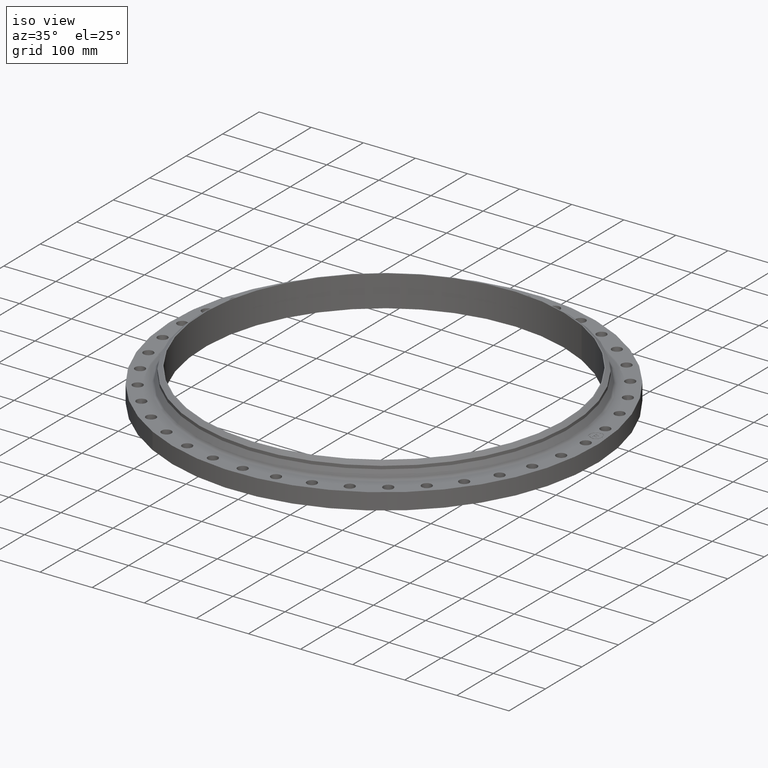
[diagram: clean part render]
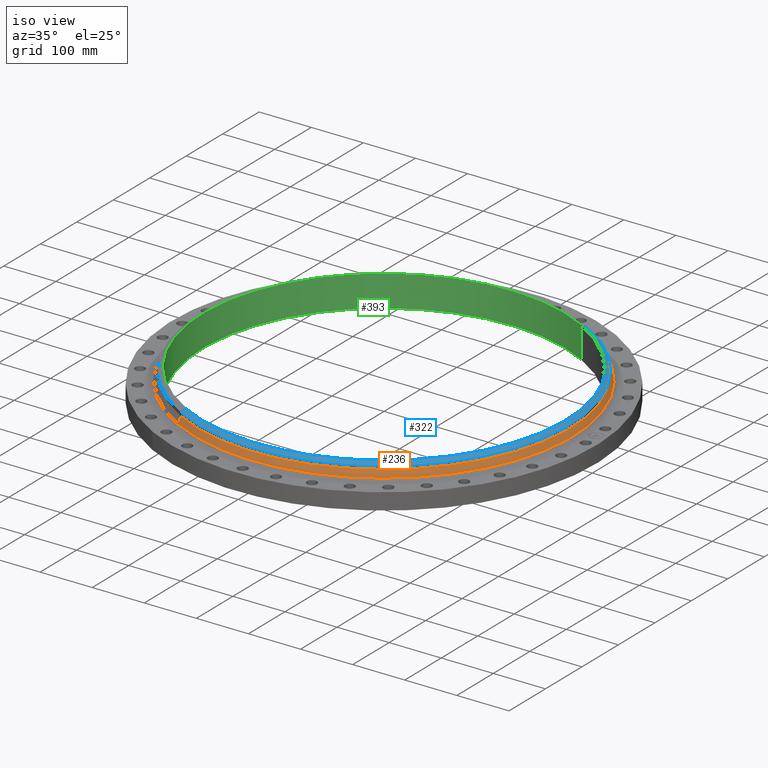
[diagram: same view with three faces highlighted in distinct colors, each labeled with its STEP entity id]
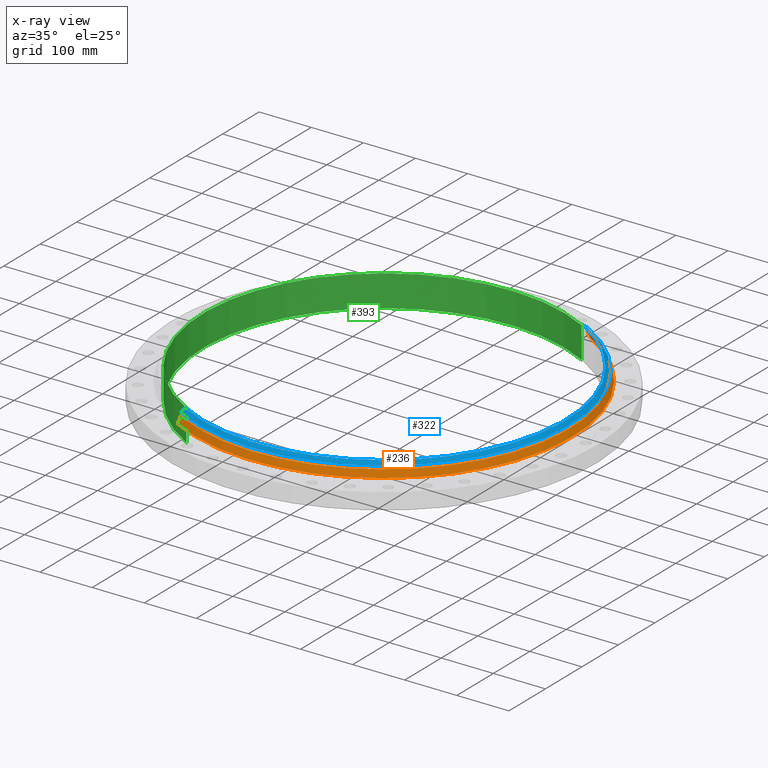
[diagram: x-ray of the same camera — body ghosted, the three highlighted faces saturated]
A machine part, iso view with three faces highlighted in distinct colors.
The next image is the same camera in x-ray (body ghosted, the three faces saturated) — at least one of them is partly hidden behind the body in this view.
Their STEP definitions:

[orange] entity #236 — the highlighted conical surface has half-angle 23.178 deg.
#172=AXIS2_PLACEMENT_3D('Circle Axis2P3D',#170,#171,$) ;
#209=AXIS2_PLACEMENT_3D('Cone Axis2P3D',#206,#207,#208) ;
#220=AXIS2_PLACEMENT_3D('Circle Axis2P3D',#218,#219,$) ;
#167=CARTESIAN_POINT('Vertex',(6.82946100199,12.5012445101,1.40160371401)) ;
#170=CARTESIAN_POINT('Axis2P3D Location',(0.,0.,1.40160371401)) ;
#174=CARTESIAN_POINT('Vertex',(-6.82946100199,-12.5012445101,1.40160371401)) ;
#206=CARTESIAN_POINT('Axis2P3D Location',(0.,0.,1.90398984382)) ;
#211=CARTESIAN_POINT('Line Origine',(6.77790065432,12.4068639267,1.65279677892)) ;
#215=CARTESIAN_POINT('Vertex',(6.72634030664,12.3124833434,1.90398984382)) ;
#218=CARTESIAN_POINT('Axis2P3D Location',(0.,0.,1.90398984382)) ;
#222=CARTESIAN_POINT('Vertex',(-6.72634030664,-12.3124833434,1.90398984382)) ;
#225=CARTESIAN_POINT('Line Origine',(-6.77790065432,-12.4068639267,1.65279677892)) ;
#171=DIRECTION('Axis2P3D Direction',(0.,0.,-0.0393700787402)) ;
#207=DIRECTION('Axis2P3D Direction',(0.,0.,-0.0393700787402)) ;
#208=DIRECTION('Axis2P3D XDirection',(-0.0188750212049,-0.0345504945626,0.)) ;
#212=DIRECTION('Vector Direction',(0.00742892793828,0.0135985613765,-0.0361924475296)) ;
#219=DIRECTION('Axis2P3D Direction',(0.,0.,-0.0393700787402)) ;
#226=DIRECTION('Vector Direction',(-0.00742892793828,-0.0135985613765,-0.0361924475296)) ;
#213=VECTOR('Line Direction',#212,0.0393700787402) ;
#227=VECTOR('Line Direction',#226,0.0393700787402) ;
#231=ORIENTED_EDGE('',*,*,#176,.F.) ;
#232=ORIENTED_EDGE('',*,*,#217,.T.) ;
#233=ORIENTED_EDGE('',*,*,#224,.T.) ;
#234=ORIENTED_EDGE('',*,*,#229,.F.) ;
#236=ADVANCED_FACE('PartBody',(#235),#210,.T.) ;
#173=CIRCLE('generated circle',#172,14.2450922032) ;
#221=CIRCLE('generated circle',#220,14.0300000001) ;
#210=CONICAL_SURFACE('Cone',#209,14.0300000001,0.404528265206) ;
#176=EDGE_CURVE('',#168,#175,#173,.T.) ;
#217=EDGE_CURVE('',#168,#216,#214,.F.) ;
#224=EDGE_CURVE('',#216,#223,#221,.T.) ;
#229=EDGE_CURVE('',#175,#223,#228,.F.) ;
#230=EDGE_LOOP('',(#231,#232,#233,#234)) ;
#235=FACE_OUTER_BOUND('',#230,.T.) ;
#214=LINE('Line',#211,#213) ;
#228=LINE('Line',#225,#227) ;
#168=VERTEX_POINT('',#167) ;
#175=VERTEX_POINT('',#174) ;
#216=VERTEX_POINT('',#215) ;
#223=VERTEX_POINT('',#222) ;

[blue] entity #322 — the highlighted conical surface has half-angle 52.5 deg.
#270=AXIS2_PLACEMENT_3D('Circle Axis2P3D',#268,#269,$) ;
#295=AXIS2_PLACEMENT_3D('Cone Axis2P3D',#292,#293,#294) ;
#306=AXIS2_PLACEMENT_3D('Circle Axis2P3D',#304,#305,$) ;
#258=CARTESIAN_POINT('Vertex',(-6.72634030664,-12.3124833434,2.14021031627)) ;
#265=CARTESIAN_POINT('Vertex',(6.72634030664,12.3124833434,2.14021031627)) ;
#268=CARTESIAN_POINT('Axis2P3D Location',(0.,0.,2.14021031627)) ;
#292=CARTESIAN_POINT('Axis2P3D Location',(0.,0.,2.38000000001)) ;
#297=CARTESIAN_POINT('Line Origine',(6.65143006624,12.1753610681,2.26010515814)) ;
#301=CARTESIAN_POINT('Vertex',(6.57651982583,12.0382387928,2.38000000001)) ;
#304=CARTESIAN_POINT('Axis2P3D Location',(0.,0.,2.38000000001)) ;
#308=CARTESIAN_POINT('Vertex',(-6.57651982583,-12.0382387928,2.38000000001)) ;
#311=CARTESIAN_POINT('Line Origine',(-6.65143006624,-12.1753610681,2.26010515814)) ;
#269=DIRECTION('Axis2P3D Direction',(0.,0.,-0.0393700787402)) ;
#293=DIRECTION('Axis2P3D Direction',(-0.,-0.,-0.0393700787402)) ;
#294=DIRECTION('Axis2P3D XDirection',(-0.0188750212049,-0.0345504945626,0.)) ;
#298=DIRECTION('Vector Direction',(0.014974561121,0.02741075027,-0.023966985394)) ;
#305=DIRECTION('Axis2P3D Direction',(0.,-0.,-0.0393700787402)) ;
#312=DIRECTION('Vector Direction',(-0.014974561121,-0.02741075027,-0.023966985394)) ;
#299=VECTOR('Line Direction',#298,0.0393700787402) ;
#313=VECTOR('Line Direction',#312,0.0393700787402) ;
#317=ORIENTED_EDGE('',*,*,#303,.F.) ;
#318=ORIENTED_EDGE('',*,*,#310,.T.) ;
#319=ORIENTED_EDGE('',*,*,#315,.T.) ;
#320=ORIENTED_EDGE('',*,*,#272,.F.) ;
#322=ADVANCED_FACE('PartBody',(#321),#296,.T.) ;
#271=CIRCLE('generated circle',#270,14.0300000001) ;
#307=CIRCLE('generated circle',#306,13.7175000001) ;
#296=CONICAL_SURFACE('Cone',#295,13.7175000001,0.916297857297) ;
#272=EDGE_CURVE('',#266,#259,#271,.T.) ;
#303=EDGE_CURVE('',#302,#266,#300,.T.) ;
#310=EDGE_CURVE('',#302,#309,#307,.T.) ;
#315=EDGE_CURVE('',#309,#259,#314,.T.) ;
#316=EDGE_LOOP('',(#317,#318,#319,#320)) ;
#321=FACE_OUTER_BOUND('',#316,.T.) ;
#300=LINE('Line',#297,#299) ;
#314=LINE('Line',#311,#313) ;
#259=VERTEX_POINT('',#258) ;
#266=VERTEX_POINT('',#265) ;
#302=VERTEX_POINT('',#301) ;
#309=VERTEX_POINT('',#308) ;

[green] entity #393 — the highlighted cylindrical surface (partial cylindrical patch) has radius 346.837 mm, axis along (0, 0, -1).
#346=AXIS2_PLACEMENT_3D('Circle Axis2P3D',#344,#345,$) ;
#366=AXIS2_PLACEMENT_3D('Cylinder Axis2P3D',#363,#364,#365) ;
#377=AXIS2_PLACEMENT_3D('Circle Axis2P3D',#375,#376,$) ;
#344=CARTESIAN_POINT('Axis2P3D Location',(0.,0.,2.38000000001)) ;
#348=CARTESIAN_POINT('Vertex',(-6.54655572967,-11.9833898827,2.38000000001)) ;
#350=CARTESIAN_POINT('Vertex',(6.54655572967,11.9833898827,2.38000000001)) ;
#363=CARTESIAN_POINT('Axis2P3D Location',(0.,0.,1.24)) ;
#368=CARTESIAN_POINT('Line Origine',(-6.54655572967,-11.9833898827,1.19)) ;
#372=CARTESIAN_POINT('Vertex',(-6.54655572967,-11.9833898827,-1.7763568394E-014)) ;
#375=CARTESIAN_POINT('Axis2P3D Location',(0.,0.,-1.76236977767E-014)) ;
#379=CARTESIAN_POINT('Vertex',(6.54655572967,11.9833898827,-1.7763568394E-014)) ;
#382=CARTESIAN_POINT('Line Origine',(6.54655572967,11.9833898827,1.19)) ;
#345=DIRECTION('Axis2P3D Direction',(0.,-0.,-0.0393700787402)) ;
#364=DIRECTION('Axis2P3D Direction',(0.,0.,-0.0393700787402)) ;
#365=DIRECTION('Axis2P3D XDirection',(0.0188750212049,0.0345504945626,0.)) ;
#369=DIRECTION('Vector Direction',(0.,0.,-0.0393700787402)) ;
#376=DIRECTION('Axis2P3D Direction',(0.,0.,-0.0393700787402)) ;
#383=DIRECTION('Vector Direction',(0.,0.,-0.0393700787402)) ;
#370=VECTOR('Line Direction',#369,0.0393700787402) ;
#384=VECTOR('Line Direction',#383,0.0393700787402) ;
#388=ORIENTED_EDGE('',*,*,#374,.T.) ;
#389=ORIENTED_EDGE('',*,*,#381,.T.) ;
#390=ORIENTED_EDGE('',*,*,#386,.F.) ;
#391=ORIENTED_EDGE('',*,*,#352,.F.) ;
#393=ADVANCED_FACE('PartBody',(#392),#367,.F.) ;
#347=CIRCLE('generated circle',#346,13.6550000001) ;
#378=CIRCLE('generated circle',#377,13.6550000001) ;
#367=CYLINDRICAL_SURFACE('generated cylinder',#366,13.6550000001) ;
#352=EDGE_CURVE('',#349,#351,#347,.T.) ;
#374=EDGE_CURVE('',#349,#373,#371,.T.) ;
#381=EDGE_CURVE('',#373,#380,#378,.T.) ;
#386=EDGE_CURVE('',#351,#380,#385,.T.) ;
#387=EDGE_LOOP('',(#388,#389,#390,#391)) ;
#392=FACE_OUTER_BOUND('',#387,.T.) ;
#371=LINE('Line',#368,#370) ;
#385=LINE('Line',#382,#384) ;
#349=VERTEX_POINT('',#348) ;
#351=VERTEX_POINT('',#350) ;
#373=VERTEX_POINT('',#372) ;
#380=VERTEX_POINT('',#379) ;